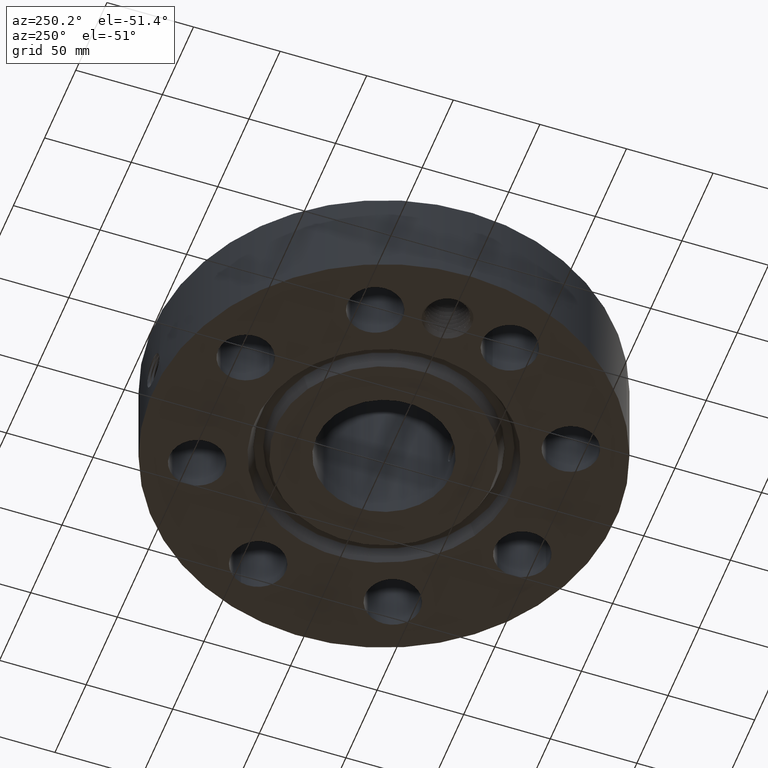
[diagram: clean part render]
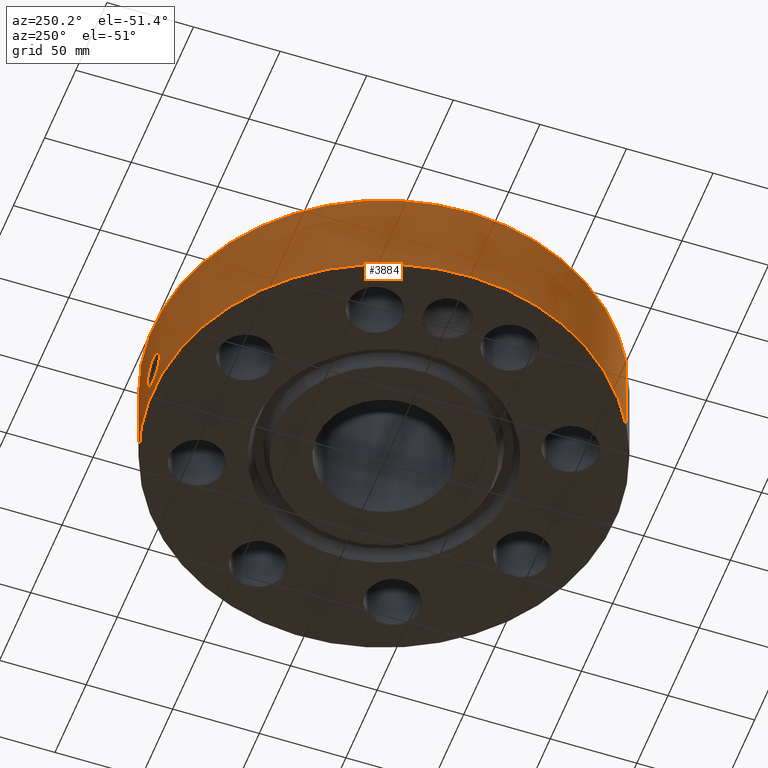
[diagram: same view with one face highlighted and labeled with its STEP entity id]
A machine part, auxiliary view. The second image highlights one B-rep face of the part: STEP entity #3884.
In plain terms, the highlighted cylindrical surface (partial cylindrical patch) has radius 133.35 mm, axis along (0, 0, -1).
Its self-contained STEP definition (entity closure, byte-faithful):
#2927=AXIS2_PLACEMENT_3D('Circle Axis2P3D',#2925,#2926,$) ;
#3771=AXIS2_PLACEMENT_3D('Cylinder Axis2P3D',#3768,#3769,#3770) ;
#3775=AXIS2_PLACEMENT_3D('Circle Axis2P3D',#3773,#3774,$) ;
#2920=CARTESIAN_POINT('Vertex',(2.51698407768,4.60730844994,2.19200000001)) ;
#2922=CARTESIAN_POINT('Vertex',(-2.51698407768,-4.60730844994,2.19200000001)) ;
#2925=CARTESIAN_POINT('Axis2P3D Location',(0.,0.,2.19200000001)) ;
#3768=CARTESIAN_POINT('Axis2P3D Location',(0.,0.,2.46600000001)) ;
#3773=CARTESIAN_POINT('Axis2P3D Location',(0.,0.,5.59482469102E-016)) ;
#3777=CARTESIAN_POINT('Vertex',(-2.51698407768,-4.60730844994,5.59482469102E-016)) ;
#3779=CARTESIAN_POINT('Vertex',(2.51698407768,4.60730844994,5.59482469102E-016)) ;
#3782=CARTESIAN_POINT('Line Origine',(-2.51698407768,-4.60730844994,1.096)) ;
#3787=CARTESIAN_POINT('Line Origine',(2.51698407768,4.60730844994,1.096)) ;
#3799=CARTESIAN_POINT('Control Point',(-0.064256541959,5.24960675642,1.09822782548)) ;
#3800=CARTESIAN_POINT('Control Point',(-0.0433130365703,5.24986311033,1.10210062824)) ;
#3801=CARTESIAN_POINT('Control Point',(-0.0220171462134,5.24999704247,1.10407525058)) ;
#3802=CARTESIAN_POINT('Control Point',(-0.00071690103976,5.24999995107,1.10411849726)) ;
#3803=CARTESIAN_POINT('Vertex',(-0.0642341499509,5.24960730474,1.0982322716)) ;
#3805=CARTESIAN_POINT('Vertex',(-0.000716698655927,5.2499999511,1.10411850752)) ;
#3809=CARTESIAN_POINT('Control Point',(-0.0642340213415,5.24960703203,1.09823162484)) ;
#3810=CARTESIAN_POINT('Control Point',(-0.101367608457,5.24915266666,1.09265370348)) ;
#3811=CARTESIAN_POINT('Control Point',(-0.13757170237,5.24830194678,1.08041619257)) ;
#3812=CARTESIAN_POINT('Control Point',(-0.17070982714,5.2472238522,1.06251500554)) ;
#3813=CARTESIAN_POINT('Vertex',(-0.17070982714,5.2472238522,1.06251500554)) ;
#3817=CARTESIAN_POINT('Control Point',(-0.0292241829011,5.24991866102,0.341058914193)) ;
#3818=CARTESIAN_POINT('Control Point',(-0.0757986336229,5.24965939981,0.347030416454)) ;
#3819=CARTESIAN_POINT('Control Point',(-0.1212101878,5.24889011667,0.360520752785)) ;
#3820=CARTESIAN_POINT('Control Point',(-0.163721858534,5.24767091939,0.381165617433)) ;
#3821=CARTESIAN_POINT('Control Point',(-0.257613224006,5.24410928576,0.446326122403)) ;
#3822=CARTESIAN_POINT('Control Point',(-0.321981442046,5.24027286039,0.53990460007)) ;
#3823=CARTESIAN_POINT('Control Point',(-0.347591824534,5.23849692581,0.601510173649)) ;
#3824=CARTESIAN_POINT('Control Point',(-0.367018684611,5.23715940473,0.698798378105)) ;
#3825=CARTESIAN_POINT('Control Point',(-0.357452270053,5.2378180432,0.795206744512)) ;
#3826=CARTESIAN_POINT('Control Point',(-0.350906096162,5.23826917076,0.827331385481)) ;
#3827=CARTESIAN_POINT('Control Point',(-0.326667880156,5.23988640012,0.904448039407)) ;
#3828=CARTESIAN_POINT('Control Point',(-0.283222063851,5.24246130971,0.973052153712)) ;
#3829=CARTESIAN_POINT('Control Point',(-0.250890417215,5.24419240888,1.00949215106)) ;
#3830=CARTESIAN_POINT('Control Point',(-0.212821116444,5.24585383043,1.03976652349)) ;
#3831=CARTESIAN_POINT('Control Point',(-0.17070982714,5.2472238522,1.06251500554)) ;
#3832=CARTESIAN_POINT('Vertex',(-0.0292241829011,5.24991866102,0.341058914193)) ;
#3836=CARTESIAN_POINT('Control Point',(-0.0292241829011,5.24991866102,0.341058914193)) ;
#3837=CARTESIAN_POINT('Control Point',(-0.0194758749728,5.24997292593,0.340856457999)) ;
#3838=CARTESIAN_POINT('Control Point',(-0.00972559935064,5.25000000508,0.340961817465)) ;
#3839=CARTESIAN_POINT('Control Point',(2.72878353289E-006,5.25000000002,0.341374667804)) ;
#3840=CARTESIAN_POINT('Vertex',(2.728783536E-006,5.25000000002,0.341374667804)) ;
#3844=CARTESIAN_POINT('Control Point',(0.194329401017,5.24640220381,0.3942906393)) ;
#3845=CARTESIAN_POINT('Control Point',(0.134784268462,5.24860778575,0.362218242375)) ;
#3846=CARTESIAN_POINT('Control Point',(0.0678212209534,5.24999996477,0.344252745217)) ;
#3847=CARTESIAN_POINT('Control Point',(2.72878353288E-006,5.25000000002,0.341374667804)) ;
#3848=CARTESIAN_POINT('Vertex',(0.194329401017,5.24640220381,0.3942906393)) ;
#3852=CARTESIAN_POINT('Control Point',(0.194329401017,5.24640220381,0.3942906393)) ;
#3853=CARTESIAN_POINT('Control Point',(0.245491770465,5.24450712367,0.421847883812)) ;
#3854=CARTESIAN_POINT('Control Point',(0.292059501536,5.24215771296,0.457986214421)) ;
#3855=CARTESIAN_POINT('Control Point',(0.332013374842,5.23964261044,0.50210849748)) ;
#3856=CARTESIAN_POINT('Control Point',(0.391712447478,5.23546450526,0.600666519053)) ;
#3857=CARTESIAN_POINT('Control Point',(0.411028559299,5.23387653346,0.713977122045)) ;
#3858=CARTESIAN_POINT('Control Point',(0.409563646056,5.23399901153,0.770037204583)) ;
#3859=CARTESIAN_POINT('Control Point',(0.384642380117,5.23601093276,0.880973427579)) ;
#3860=CARTESIAN_POINT('Control Point',(0.321410523749,5.24032086363,0.973704000834)) ;
#3861=CARTESIAN_POINT('Control Point',(0.280632401149,5.24278573037,1.0139610915)) ;
#3862=CARTESIAN_POINT('Control Point',(0.201889943193,5.24656144924,1.06790107998)) ;
#3863=CARTESIAN_POINT('Control Point',(0.112894729229,5.24898233185,1.09620969237)) ;
#3864=CARTESIAN_POINT('Control Point',(0.075358038216,5.24966520022,1.10335683808)) ;
#3865=CARTESIAN_POINT('Control Point',(0.0374937145297,5.25000018475,1.10599233718)) ;
#3866=CARTESIAN_POINT('Control Point',(-2.58579355177E-005,5.24999999996,1.10415298436)) ;
#3867=CARTESIAN_POINT('Vertex',(-2.58579355206E-005,5.24999999996,1.10415298436)) ;
#3871=CARTESIAN_POINT('Control Point',(-0.000716698644566,5.2499999511,1.10411850751)) ;
#3872=CARTESIAN_POINT('Control Point',(-0.000371301620963,5.24999999825,1.10413604941)) ;
#3873=CARTESIAN_POINT('Control Point',(-2.58579428093E-005,5.24999999996,1.10415298436)) ;
#2926=DIRECTION('Axis2P3D Direction',(0.,0.,-0.0393700787402)) ;
#3769=DIRECTION('Axis2P3D Direction',(0.,0.,-0.0393700787402)) ;
#3770=DIRECTION('Axis2P3D XDirection',(0.0188750212049,0.0345504945626,0.)) ;
#3774=DIRECTION('Axis2P3D Direction',(0.,0.,-0.0393700787402)) ;
#3783=DIRECTION('Vector Direction',(0.,0.,-0.0393700787402)) ;
#3788=DIRECTION('Vector Direction',(0.,0.,-0.0393700787402)) ;
#3784=VECTOR('Line Direction',#3783,0.0393700787402) ;
#3789=VECTOR('Line Direction',#3788,0.0393700787402) ;
#3793=ORIENTED_EDGE('',*,*,#3781,.F.) ;
#3794=ORIENTED_EDGE('',*,*,#3786,.T.) ;
#3795=ORIENTED_EDGE('',*,*,#2929,.T.) ;
#3796=ORIENTED_EDGE('',*,*,#3791,.F.) ;
#3876=ORIENTED_EDGE('',*,*,#3807,.F.) ;
#3877=ORIENTED_EDGE('',*,*,#3815,.T.) ;
#3878=ORIENTED_EDGE('',*,*,#3834,.F.) ;
#3879=ORIENTED_EDGE('',*,*,#3842,.T.) ;
#3880=ORIENTED_EDGE('',*,*,#3850,.F.) ;
#3881=ORIENTED_EDGE('',*,*,#3869,.T.) ;
#3882=ORIENTED_EDGE('',*,*,#3874,.F.) ;
#3883=FACE_BOUND('',#3875,.T.) ;
#3884=ADVANCED_FACE('PartBody',(#3797,#3883),#3772,.T.) ;
#3798=B_SPLINE_CURVE_WITH_KNOTS('',3,(#3799,#3800,#3801,#3802),.UNSPECIFIED.,.F.,.U.,(4,4),(4.15880365704,6.52187522517),.UNSPECIFIED.) ;
#3808=B_SPLINE_CURVE_WITH_KNOTS('',3,(#3809,#3810,#3811,#3812),.UNSPECIFIED.,.F.,.U.,(4,4),(0.,4.21910835906),.UNSPECIFIED.) ;
#3816=B_SPLINE_CURVE_WITH_KNOTS('',5,(#3817,#3818,#3819,#3820,#3821,#3822,#3823,#3824,#3825,#3826,#3827,#3828,#3829,#3830,#3831),.UNSPECIFIED.,.F.,.U.,(6,3,3,3,6),(0.,8.16106559891,20.0085203329,26.0732220469,35.0091577376),.UNSPECIFIED.) ;
#3835=B_SPLINE_CURVE_WITH_KNOTS('',3,(#3836,#3837,#3838,#3839),.UNSPECIFIED.,.F.,.U.,(4,4),(0.,1.01672404367),.UNSPECIFIED.) ;
#3843=B_SPLINE_CURVE_WITH_KNOTS('',3,(#3844,#3845,#3846,#3847),.UNSPECIFIED.,.F.,.U.,(4,4),(0.,7.08782543072),.UNSPECIFIED.) ;
#3851=B_SPLINE_CURVE_WITH_KNOTS('',5,(#3852,#3853,#3854,#3855,#3856,#3857,#3858,#3859,#3860,#3861,#3862,#3863,#3864,#3865,#3866),.UNSPECIFIED.,.F.,.U.,(6,3,3,3,6),(0.,10.1500023462,19.6791327433,29.7545967928,36.7677817898),.UNSPECIFIED.) ;
#3870=B_SPLINE_CURVE_WITH_KNOTS('',2,(#3871,#3872,#3873),.UNSPECIFIED.,.F.,.U.,(3,3),(1.08994559752,1.11577382963),.UNSPECIFIED.) ;
#2928=CIRCLE('generated circle',#2927,5.25000000002) ;
#3776=CIRCLE('generated circle',#3775,5.25000000002) ;
#3772=CYLINDRICAL_SURFACE('generated cylinder',#3771,5.25000000002) ;
#2929=EDGE_CURVE('',#2923,#2921,#2928,.T.) ;
#3781=EDGE_CURVE('',#3778,#3780,#3776,.T.) ;
#3786=EDGE_CURVE('',#3778,#2923,#3785,.F.) ;
#3791=EDGE_CURVE('',#3780,#2921,#3790,.F.) ;
#3807=EDGE_CURVE('',#3804,#3806,#3798,.T.) ;
#3815=EDGE_CURVE('',#3804,#3814,#3808,.T.) ;
#3834=EDGE_CURVE('',#3833,#3814,#3816,.T.) ;
#3842=EDGE_CURVE('',#3833,#3841,#3835,.T.) ;
#3850=EDGE_CURVE('',#3849,#3841,#3843,.T.) ;
#3869=EDGE_CURVE('',#3849,#3868,#3851,.T.) ;
#3874=EDGE_CURVE('',#3806,#3868,#3870,.T.) ;
#3792=EDGE_LOOP('',(#3793,#3794,#3795,#3796)) ;
#3875=EDGE_LOOP('',(#3876,#3877,#3878,#3879,#3880,#3881,#3882)) ;
#3797=FACE_OUTER_BOUND('',#3792,.T.) ;
#3785=LINE('Line',#3782,#3784) ;
#3790=LINE('Line',#3787,#3789) ;
#2921=VERTEX_POINT('',#2920) ;
#2923=VERTEX_POINT('',#2922) ;
#3778=VERTEX_POINT('',#3777) ;
#3780=VERTEX_POINT('',#3779) ;
#3804=VERTEX_POINT('',#3803) ;
#3806=VERTEX_POINT('',#3805) ;
#3814=VERTEX_POINT('',#3813) ;
#3833=VERTEX_POINT('',#3832) ;
#3841=VERTEX_POINT('',#3840) ;
#3849=VERTEX_POINT('',#3848) ;
#3868=VERTEX_POINT('',#3867) ;